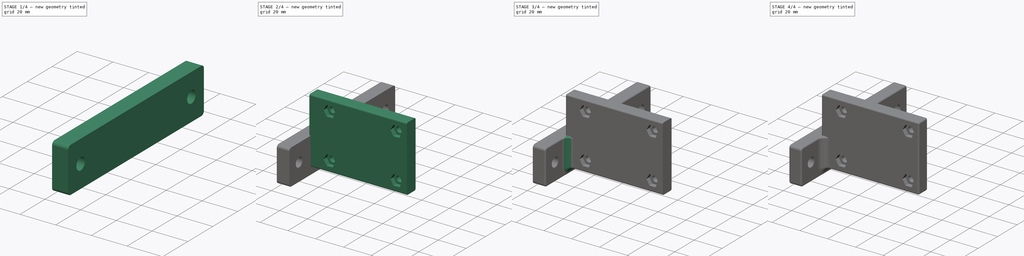
[diagram: build sequence overview — one tinted view per stage of 4, left to right]
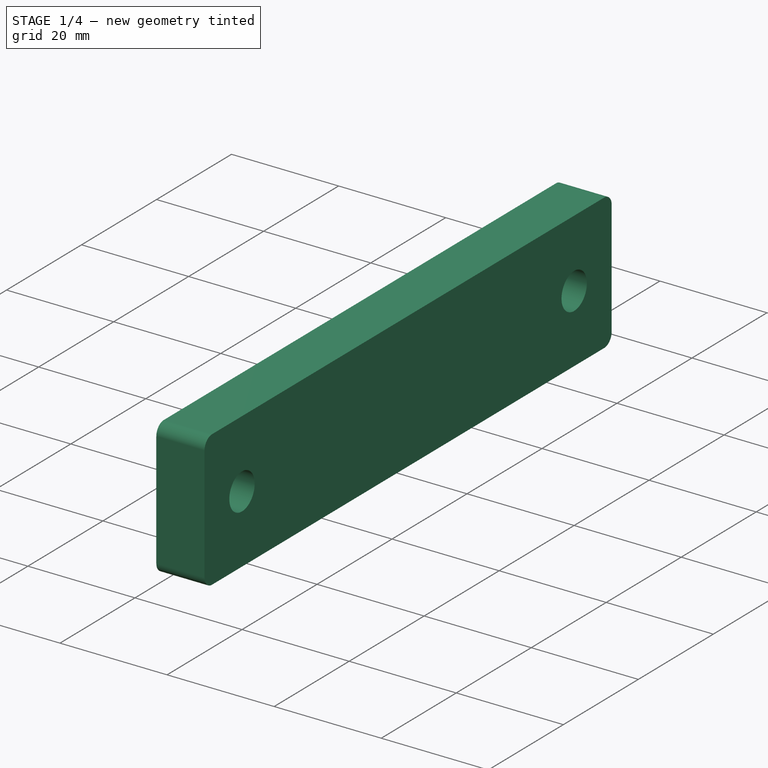
[diagram: stage 1 of 4 — iso view after this stage's code; geometry added in this stage tinted green]
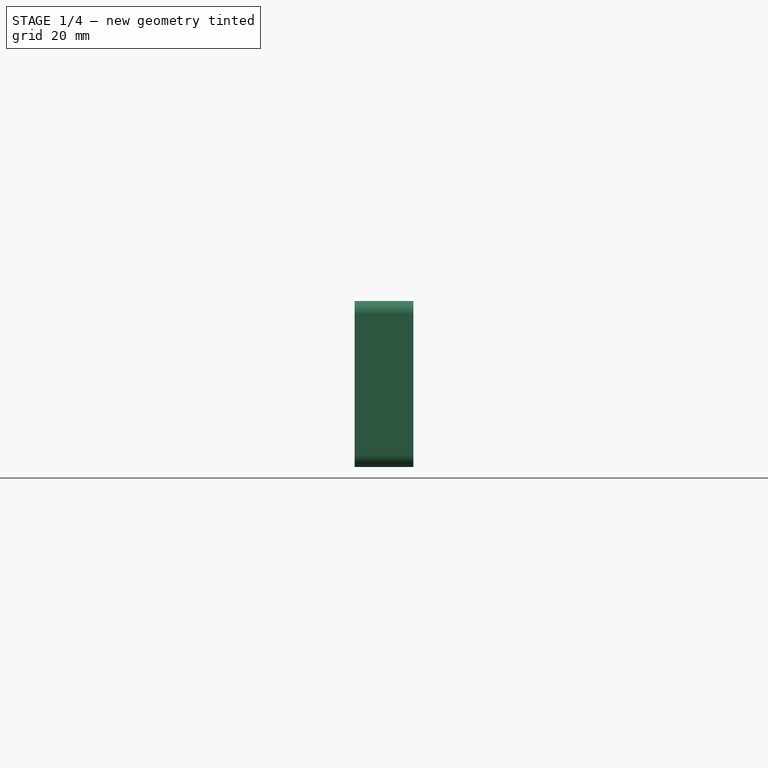
[diagram: stage 1 of 4 — front view after this stage's code; geometry added in this stage tinted green]
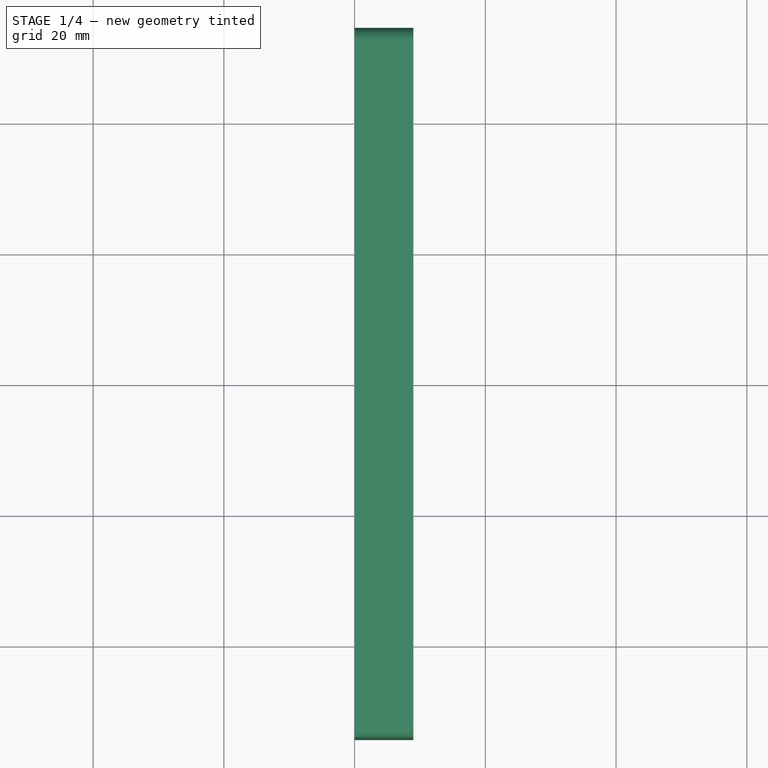
[diagram: stage 1 of 4 — top view after this stage's code; geometry added in this stage tinted green]
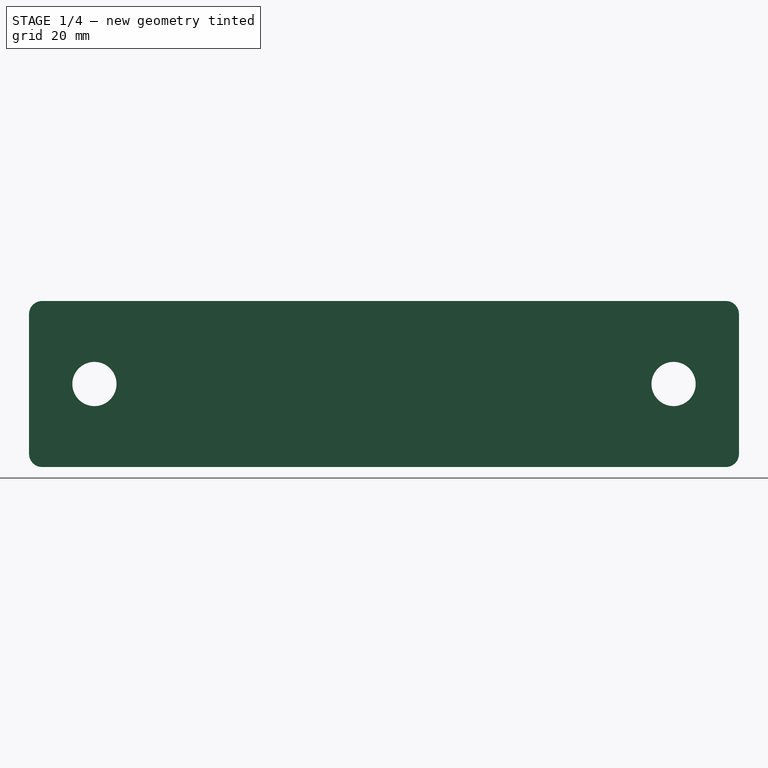
[diagram: stage 1 of 4 — right view after this stage's code; geometry added in this stage tinted green]
FCSTD DOCUMENT  (FreeCAD 0.20R29603 (Git))
Label: tmaze_door_bracket
License: All rights reserved
LicenseURL: http://en.wikipedia.org/wiki/All_rights_reserved
objects: Sketcher::SketchObject×5, PartDesign::Fillet×5, PartDesign::Plane×3, PartDesign::Pocket×3, PartDesign::Pad×2, Spreadsheet::Sheet×1, PartDesign::Body×1
note: 29 computed .brp shape members not serialized (recipe doc carries the construction recipe); baked Part::Feature solids carry a one-line shape summary decoded from their .brp

FEATURE [Spreadsheet::Sheet] Spreadsheet
  cells = A2=External Part Parameters; A3=ServoLength; B3(ServoLength)==54.3mm; A4=ServoHoleSpacing; B4(ServoHoleSpacing)==48mm; A5=ServoBracketHoleSpacing; B5(ServoBracketHoleSpacing)==32mm; A6=ServoBracketBaseLength; B6(ServoBracketBaseLength)==39mm; A7=ServoBracketBaseWidth; B7(ServoBracketBaseWidth)==7mm; A8=ServoBracketAssemblyLength; B8(ServoBracketAssemblyLength)==55mm; A9=ServoBracketMountHoleDiam; B9(ServoBracketMountHoleDiam)==4.3mm; C9=M4; A10=ServoBracketMountNutWidth; B10(ServoBracketMountNutWidth)==7mm; C10=M4 ; A11=ServoBracketMountNutThickness; B11(ServoBracketMountNutThickness)==3.2mm; A12=Height1020Beam; B12(Height1020Beam)==1in; A13=Qtr20ThruHoleDiam; B13(Qtr20ThruHoleDiam)==0.266in; A14=Qtr20MaxDiamHead; B14(Qtr20MaxDiamHead)==14mm; A15=FloorThickness; B15(FloorThickness)==0.125in; A17=Design Parameters; A18=MountPlateThickness; B18(MountPlateThickness)==9mm; A19=MountPlateLength; B19(MountPlateLength)==2 * ServoLength; A20=MountPlateHeight; B20(MountPlateHeight)==1in; A21=MountPlateCornerFilletRadius; B21(MountPlateCornerFilletRadius)==2mm; A22=Qtr20SlotHeight; B22(Qtr20SlotHeight)==1.001 * Qtr20ThruHoleDiam; A23=Qtr20SlotDistFromEnd; B23(Qtr20SlotDistFromEnd)==0.5 * Qtr20MaxDiamHead + 3mm; A24=ServoPlateFilletRadius; B24(ServoPlateFilletRadius)==3mm; A25=ServoPlateDistFromSlot; B25(ServoPlateDistFromSlot)==0.5 * Qtr20MaxDiamHead + ServoPlateFilletRadius + 2mm; A26=ServoMarginToMountPlate; B26(ServoMarginToMountPlate)==10mm; A27=ServoBracketMargin; B27(ServoBracketMargin)==4mm; A28=ServoPlateThickness; B28(ServoPlateThickness)==9mm; A29=ServoPlateLength; B29(ServoPlateLength)==ServoBracketAssemblyLength + ServoMarginToMountPlate + ServoBracketMargin; A30=ServoPlateHeight; B30(ServoPlateHeight)==ServoBracketBaseLength + 2 * ServoBracketMargin; A31=ServoPlateCornerFilletRadius; B31(ServoPlateCornerFilletRadius)==1mm; A32=ServoPlateFrontDatumPlateOffset; B32(ServoPlateFrontDatumPlateOffset)==0.5 * MountPlateLength - Qtr20SlotDistFromEnd - ServoPlateDistFromSlot - ServoPlateThickness; A33=ServoPlateBackDatumPlateOffset; B33(ServoPlateBackDatumPlateOffset)==0.5 * MountPlateLength - Qtr20SlotDistFromEnd - ServoPlateDistFromSlot; A34=ServoBracketMountNutMargin; B34(ServoBracketMountNutMargin)==0.2mm; A35=ServoBracketMountNutPocketWidth; B35(ServoBracketMountNutPocketWidth)==ServoBracketMountNutWidth + 2 * ServoBracketMountNutMargin; A36=ServoBracketMountNutPocketDepth; B36(ServoBracketMountNutPocketDepth)==ServoBracketMountNutThickness; A37=ServoPlateToMountPlateFilletRadius; B37(ServoPlateToMountPlateFilletRadius)==5mm; A38=StadardEdgeFillets; B38(StadardEdgeFillets)==1mm
FEATURE [Sketcher::SketchObject] Sketch  label="MountPlateSketch"
  FullyConstrained = true
  MapMode = 5
  Placement = pos=(0,0,0) rot=(0.57735,0.57735,0.57735;2.0944rad)
  Support = -> [YZ_Plane]
  expr: Constraints[20] = Spreadsheet.MountPlateCornerFilletRadius
  expr: Constraints[21] = Spreadsheet.MountPlateLength
  expr: Constraints[22] = Spreadsheet.MountPlateHeight
  sketch-geometry (10):
    g0: ArcOfCircle CenterX=-52.3 CenterY=-2 CenterZ=0 NormalX=0 NormalY=0 NormalZ=1 AngleXU=0 Radius=2 StartAngle=1.5708 EndAngle=3.14159
    g1: LineSegment StartX=-52.3 StartY=0 StartZ=0 EndX=52.3 EndY=0 EndZ=0
    g2: ArcOfCircle CenterX=52.3 CenterY=-2 CenterZ=0 NormalX=0 NormalY=0 NormalZ=1 AngleXU=0 Radius=2 StartAngle=2e-16 EndAngle=1.5708
    g3: LineSegment StartX=54.3 StartY=-2 StartZ=0 EndX=54.3 EndY=-23.4 EndZ=0
    g4: ArcOfCircle CenterX=52.3 CenterY=-23.4 CenterZ=0 NormalX=0 NormalY=0 NormalZ=1 AngleXU=0 Radius=2 StartAngle=4.71239 EndAngle=6.28319
    g5: LineSegment StartX=52.3 StartY=-25.4 StartZ=0 EndX=-52.3 EndY=-25.4 EndZ=0
    g6: ArcOfCircle CenterX=-52.3 CenterY=-23.4 CenterZ=0 NormalX=0 NormalY=0 NormalZ=1 AngleXU=0 Radius=2 StartAngle=3.14159 EndAngle=4.71239
    g7: LineSegment StartX=-54.3 StartY=-23.4 StartZ=0 EndX=-54.3 EndY=-2 EndZ=0
    g8: GeomPoint X=-54.3 Y=0 Z=0
    g9: GeomPoint X=54.3 Y=-25.4 Z=0
  constraints (23):
    c: Tangent(g0,g1) = 1.5708
    c: Tangent(g1,g2) = 1.5708
    c: Tangent(g2,g3) = 1.5708
    c: Tangent(g3,g4) = 1.5708
    c: Tangent(g4,g5) = 1.5708
    c: Tangent(g5,g6) = 1.5708
    c: Tangent(g6,g7) = 1.5708
    c: Tangent(g7,g0) = 1.5708
    c: Horizontal(g1)
    c: Horizontal(g5)
    c: Vertical(g3)
    c: Vertical(g7)
    c: Equal(g0,g2)
    c: Equal(g2,g4)
    c: Equal(g4,g6)
    c: PointOnObject(g8,g1)
    c: PointOnObject(g8,g7)
    c: PointOnObject(g9,g3)
    c: PointOnObject(g9,g5)
    c: Symmetric(g0,g1,g-1)
    c: Radius(g4) = 2
    c: DistanceX(g0,g2) = 108.6
    c: DistanceY(g5,g0) = 25.4
FEATURE [PartDesign::Pad] Pad  label="MountPlatePad"
  Direction = (1,-2e-16,3e-16)
  Length = 9
  Length2 = 10
  Placement = pos=(0,0,0) rot=(0.57735,0.57735,0.57735;2.0944rad)
  Profile = -> Sketch
  ReferenceAxis = -> Sketch [N_Axis]
  Type = 0
  expr: Length = Spreadsheet.MountPlateThickness
FEATURE [PartDesign::Plane] DatumPlane  label="MountPlateFrontDatumPlane"
  AttachmentOffset = pos=(0,0,9) rot=(0,0,1;0rad)
  Length = 123.64
  MapMode = 5
  Placement = pos=(9,-2e-15,2e-15) rot=(0.57735,0.57735,0.57735;2.0944rad)
  ResizeMode = 0
  Support = -> [YZ_Plane]
  Width = 67.1154
  expr: .AttachmentOffset.Base.z = Spreadsheet.MountPlateThickness
FEATURE [Sketcher::SketchObject] Sketch001  label="Qtr20SlotSketch"
  FullyConstrained = true
  MapMode = 5
  Placement = pos=(9,-2e-15,2e-15) rot=(0.57735,0.57735,0.57735;2.0944rad)
  Support = -> [DatumPlane]
  expr: Constraints[14] = Spreadsheet.MountPlateLength
  expr: Constraints[15] = Spreadsheet.MountPlateHeight
  expr: Constraints[17] = Spreadsheet.Qtr20SlotDistFromEnd
  expr: Constraints[27] = Spreadsheet.Qtr20ThruHoleDiam
  expr: Constraints[2] = Spreadsheet.MountPlateHeight * 0.5
  expr: Constraints[40] = Spreadsheet.Qtr20SlotHeight
  expr: Constraints[63] = Spreadsheet.Qtr20SlotHeight
  sketch-geometry (23):
    g0: LineSegment StartX=0 StartY=0 StartZ=0 EndX=0 EndY=-12.7 EndZ=0
    g1: LineSegment StartX=-44.3 StartY=-12.7 StartZ=0 EndX=44.3 EndY=-12.7 EndZ=0
    g2: LineSegment StartX=-54.3 StartY=-1e-16 StartZ=0 EndX=54.3 EndY=-1e-16 EndZ=0
    g3: LineSegment StartX=54.3 StartY=-1e-16 StartZ=0 EndX=54.3 EndY=-25.4 EndZ=0
    g4: LineSegment StartX=54.3 StartY=-25.4 StartZ=0 EndX=-54.3 EndY=-25.4 EndZ=0
    g5: LineSegment StartX=-54.3 StartY=-25.4 StartZ=0 EndX=-54.3 EndY=0 EndZ=0
    g6: GeomPoint X=-54.3 Y=-12.7 Z=0
    g7: LineSegment StartX=-47.6782 StartY=-12.6966 StartZ=0 EndX=-40.9218 EndY=-12.6966 EndZ=0
    g8: LineSegment StartX=-40.9218 StartY=-12.6966 StartZ=0 EndX=-40.9218 EndY=-12.7034 EndZ=0
    g9: LineSegment StartX=-40.9218 StartY=-12.7034 StartZ=0 EndX=-47.6782 EndY=-12.7034 EndZ=0
    g10: LineSegment StartX=-47.6782 StartY=-12.7034 StartZ=0 EndX=-47.6782 EndY=-12.6966 EndZ=0
    g11: ArcOfCircle CenterX=-44.3 CenterY=-12.6966 CenterZ=0 NormalX=0 NormalY=0 NormalZ=1 AngleXU=0 Radius=3.3782 StartAngle=1e-15 EndAngle=3.14159
    g12: ArcOfCircle CenterX=-44.3 CenterY=-12.7034 CenterZ=0 NormalX=0 NormalY=0 NormalZ=1 AngleXU=0 Radius=3.3782 StartAngle=3.14159 EndAngle=6.28319
    g13: LineSegment StartX=-44.3 StartY=-12.6966 StartZ=0 EndX=-44.3 EndY=-9.31842 EndZ=0
    g14: LineSegment StartX=-44.3 StartY=-12.7034 StartZ=0 EndX=-44.3 EndY=-16.0816 EndZ=0
    g15: LineSegment StartX=40.9218 StartY=-12.6966 StartZ=0 EndX=47.6782 EndY=-12.6966 EndZ=0
    g16: LineSegment StartX=47.6782 StartY=-12.6966 StartZ=0 EndX=47.6782 EndY=-12.7034 EndZ=0
    g17: LineSegment StartX=47.6782 StartY=-12.7034 StartZ=0 EndX=40.9218 EndY=-12.7034 EndZ=0
    g18: LineSegment StartX=40.9218 StartY=-12.7034 StartZ=0 EndX=40.9218 EndY=-12.6966 EndZ=0
    g19: ArcOfCircle CenterX=44.3 CenterY=-12.6966 CenterZ=0 NormalX=0 NormalY=0 NormalZ=1 AngleXU=0 Radius=3.3782 StartAngle=-3.6e-15 EndAngle=3.14159
    g20: ArcOfCircle CenterX=44.3 CenterY=-12.7034 CenterZ=0 NormalX=0 NormalY=0 NormalZ=1 AngleXU=0 Radius=3.3782 StartAngle=3.14159 EndAngle=6.28319
    g21: LineSegment StartX=44.3 StartY=-12.6966 StartZ=0 EndX=44.3 EndY=-9.31842 EndZ=0
    g22: LineSegment StartX=44.3 StartY=-12.7034 StartZ=0 EndX=44.3 EndY=-16.0816 EndZ=0
  constraints (64):
    c: Vertical(g0)
    c: Coincident(g0,g-1)
    c: DistanceY(g0,g0) = 12.7
    c: Symmetric(g1,g1,g0)
    c: Horizontal(g1)
    c: Coincident(g2,g3)
    c: Coincident(g3,g4)
    c: Coincident(g4,g5)
    c: Coincident(g5,g2)
    c: Horizontal(g2)
    c: Horizontal(g4)
    c: Vertical(g3)
    c: Vertical(g5)
    c: Symmetric(g2,g3,g0)
    c: DistanceX(g2,g2) = 108.6
    c: DistanceY(g3,g3) = 25.4
    c: Symmetric(g4,g2,g6)
    c: DistanceX(g6,g1) = 10
    c: Coincident(g7,g8)
    c: Coincident(g8,g9)
    c: Coincident(g9,g10)
    c: Coincident(g10,g7)
    c: Horizontal(g7)
    c: Horizontal(g9)
    c: Vertical(g8)
    c: Vertical(g10)
    c: Symmetric(g7,g8,g1)
    c: DistanceX(g9,g9) = 6.7564
    c: PointOnObject(g11,g7)
    c: Coincident(g11,g10)
    c: Coincident(g11,g8)
    c: PointOnObject(g12,g9)
    c: Coincident(g12,g10)
    c: Coincident(g12,g8)
    c: Coincident(g13,g11)
    c: PointOnObject(g13,g11)
    c: Vertical(g13)
    c: Coincident(g14,g12)
    c: PointOnObject(g14,g12)
    c: Vertical(g14)
    c: DistanceY(g14,g13) = 6.76316
    c: Coincident(g15,g16)
    c: Coincident(g16,g17)
    c: Coincident(g17,g18)
    c: Coincident(g18,g15)
    c: Horizontal(g15)
    c: Horizontal(g17)
    c: Vertical(g16)
    c: Vertical(g18)
    c: Symmetric(g15,g16,g1)
    c: Equal(g17,g9)
    c: PointOnObject(g19,g15)
    c: Coincident(g19,g18)
    c: Coincident(g19,g16)
    c: PointOnObject(g20,g17)
    c: Coincident(g20,g18)
    c: Coincident(g20,g16)
    c: Coincident(g21,g19)
    c: PointOnObject(g21,g19)
    c: Vertical(g21)
    c: Coincident(g22,g20)
    c: PointOnObject(g22,g20)
    c: Vertical(g22)
    c: DistanceY(g22,g21) = 6.76316
FEATURE [PartDesign::Pocket] Pocket  label="Qtr20SlotPadPocket"
  BaseFeature = -> Pad
  Direction = (-1,1e-16,-1e-16)
  Length = 5
  Length2 = 5
  Placement = pos=(0,0,0) rot=(0.57735,0.57735,0.57735;2.0944rad)
  Profile = -> Sketch001
  ReferenceAxis = -> Sketch001 [N_Axis]
  Type = 1
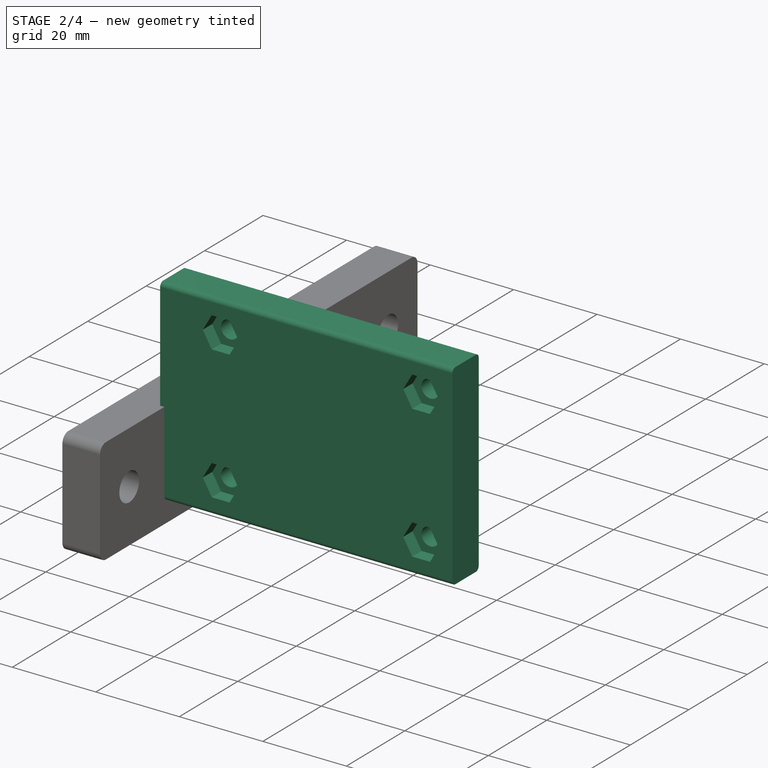
[diagram: stage 2 of 4 — iso view after this stage's code; geometry added in this stage tinted green]
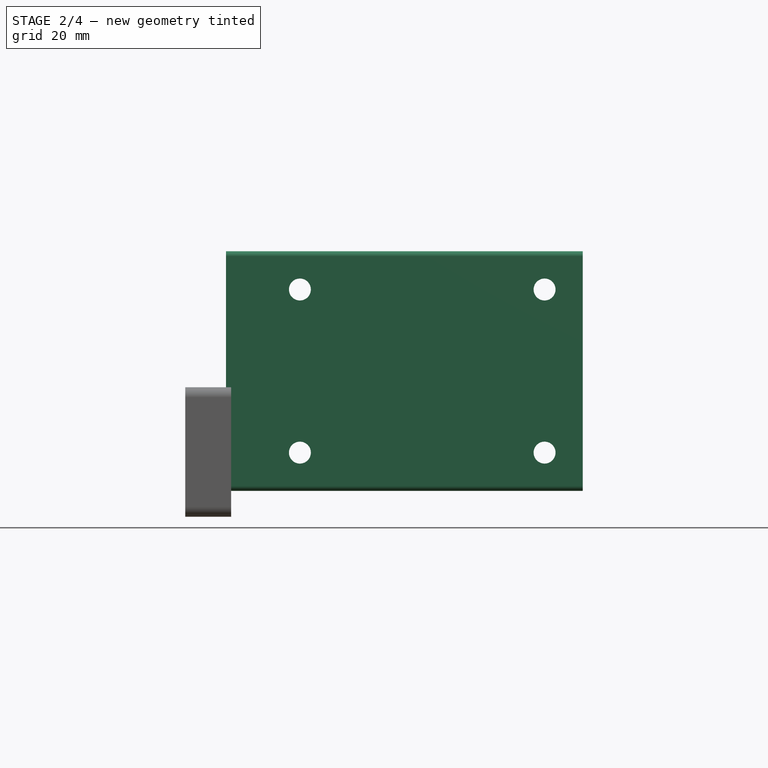
[diagram: stage 2 of 4 — front view after this stage's code; geometry added in this stage tinted green]
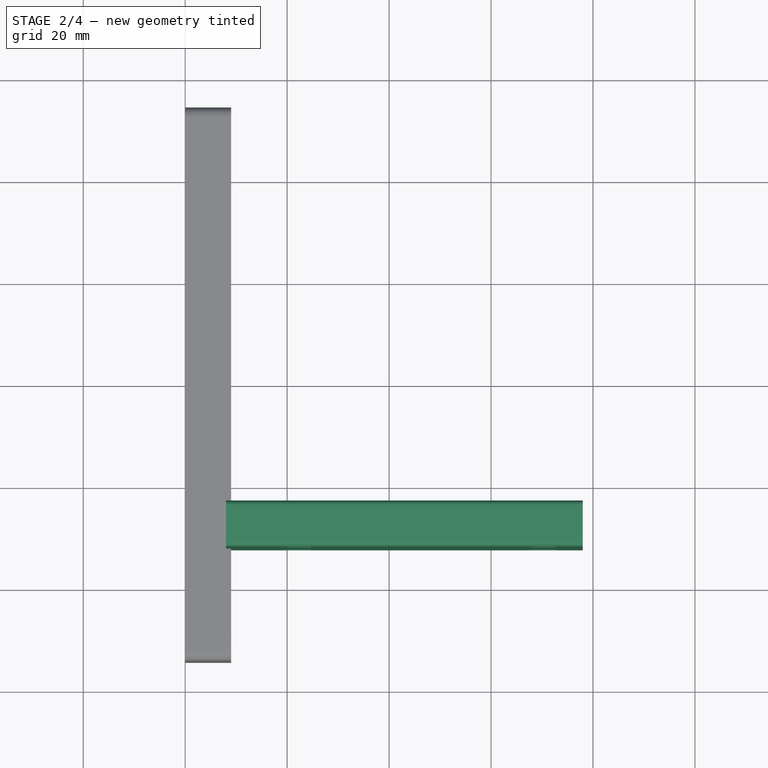
[diagram: stage 2 of 4 — top view after this stage's code; geometry added in this stage tinted green]
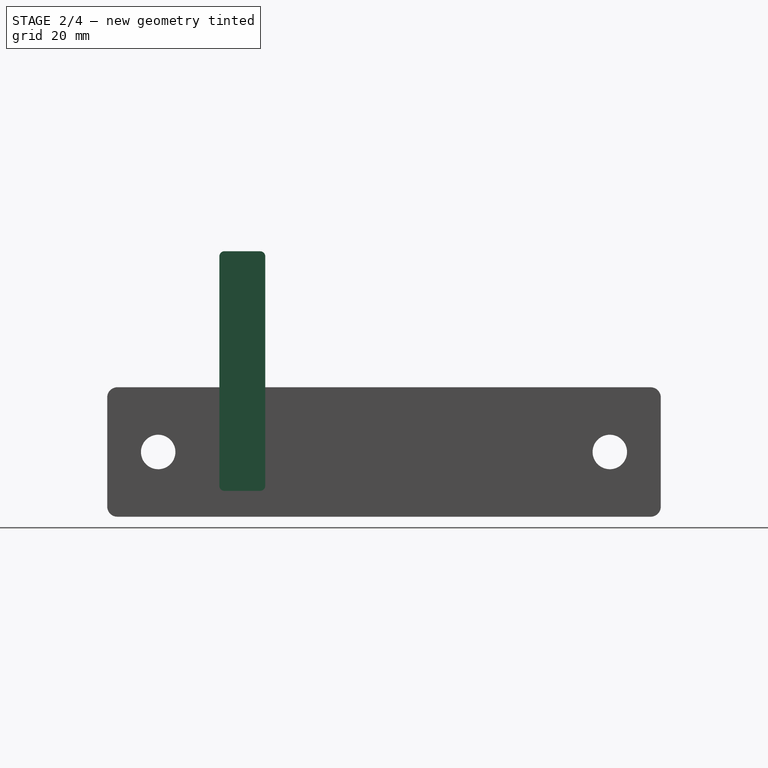
[diagram: stage 2 of 4 — right view after this stage's code; geometry added in this stage tinted green]
FEATURE [Sketcher::SketchObject] Sketch002  label="ServoPlateSketch"
  FullyConstrained = true
  MapMode = 5
  Placement = pos=(9,-2e-15,2e-15) rot=(0.57735,0.57735,0.57735;2.0944rad)
  Support = -> [DatumPlane]
  expr: Constraints[14] = Spreadsheet.MountPlateLength
  expr: Constraints[15] = Spreadsheet.MountPlateHeight
  expr: Constraints[17] = Spreadsheet.Qtr20SlotDistFromEnd
  expr: Constraints[19] = Spreadsheet.ServoPlateDistFromSlot
  expr: Constraints[2] = Spreadsheet.MountPlateHeight * 0.5
  expr: Constraints[34] = Spreadsheet.FloorThickness
  expr: Constraints[37] = Spreadsheet.ServoPlateThickness
  expr: Constraints[38] = Spreadsheet.ServoPlateHeight
  expr: Constraints[43] = Spreadsheet.ServoPlateCornerFilletRadius
  sketch-geometry (25):
    g0: LineSegment StartX=0 StartY=0 StartZ=0 EndX=0 EndY=-12.7 EndZ=0
    g1: LineSegment StartX=0 StartY=-12.7 StartZ=0 EndX=-44.3 EndY=-12.7 EndZ=0
    g2: LineSegment StartX=-54.3 StartY=5e-16 StartZ=0 EndX=54.3 EndY=5e-16 EndZ=0
    g3: LineSegment StartX=54.3 StartY=5e-16 StartZ=0 EndX=54.3 EndY=-25.4 EndZ=0
    g4: LineSegment StartX=54.3 StartY=-25.4 StartZ=0 EndX=-54.3 EndY=-25.4 EndZ=0
    g5: LineSegment StartX=-54.3 StartY=-25.4 StartZ=0 EndX=-54.3 EndY=0 EndZ=0
    g6: GeomPoint X=-54.3 Y=-12.7 Z=0
    g7: GeomPoint X=-32.3 Y=-12.7 Z=0
    g8: LineSegment StartX=-31.3 StartY=26.675 StartZ=0 EndX=-24.3 EndY=26.675 EndZ=0
    g9: LineSegment StartX=-23.3 StartY=25.675 StartZ=0 EndX=-23.3 EndY=-19.325 EndZ=0
    g10: LineSegment StartX=-24.3 StartY=-20.325 StartZ=0 EndX=-31.3 EndY=-20.325 EndZ=0
    g11: LineSegment StartX=-32.3 StartY=-19.325 StartZ=0 EndX=-32.3 EndY=25.675 EndZ=0
    g12: LineSegment StartX=-32.3 StartY=-20.325 StartZ=0 EndX=-32.3 EndY=-12.7 EndZ=0
    g13: LineSegment StartX=-54.3 StartY=5e-16 StartZ=0 EndX=-54.3 EndY=3.175 EndZ=0
    g14: LineSegment StartX=54.3 StartY=5e-16 StartZ=0 EndX=54.3 EndY=3.175 EndZ=0
    g15: LineSegment StartX=-54.3 StartY=3.175 StartZ=0 EndX=54.3 EndY=3.175 EndZ=0
    g16: GeomPoint X=-32.3 Y=3.175 Z=0
    g17: ArcOfCircle CenterX=-24.3 CenterY=25.675 CenterZ=0 NormalX=0 NormalY=0 NormalZ=1 AngleXU=0 Radius=1 StartAngle=6e-16 EndAngle=1.5708
    g18: GeomPoint X=-23.3 Y=26.675 Z=0
    g19: ArcOfCircle CenterX=-31.3 CenterY=25.675 CenterZ=0 NormalX=0 NormalY=0 NormalZ=1 AngleXU=0 Radius=1 StartAngle=1.5708 EndAngle=3.14159
    g20: GeomPoint X=-32.3 Y=26.675 Z=0
    g21: ArcOfCircle CenterX=-24.3 CenterY=-19.325 CenterZ=0 NormalX=0 NormalY=0 NormalZ=1 AngleXU=0 Radius=1 StartAngle=4.71239 EndAngle=6.28319
    g22: GeomPoint X=-23.3 Y=-20.325 Z=0
    g23: ArcOfCircle CenterX=-31.3 CenterY=-19.325 CenterZ=0 NormalX=0 NormalY=0 NormalZ=1 AngleXU=0 Radius=1 StartAngle=3.14159 EndAngle=4.71239
    g24: GeomPoint X=-32.3 Y=-20.325 Z=0
  constraints (59):
    c: Coincident(g0,g-1)
    c: Vertical(g0)
    c: DistanceY(g0,g0) = 12.7
    c: Coincident(g1,g0)
    c: Horizontal(g1)
    c: Coincident(g2,g3)
    c: Coincident(g3,g4)
    c: Coincident(g4,g5)
    c: Coincident(g5,g2)
    c: Horizontal(g2)
    c: Horizontal(g4)
    c: Vertical(g3)
    c: Vertical(g5)
    c: Symmetric(g2,g3,g0)
    c: DistanceX(g2,g2) = 108.6
    c: DistanceY(g3,g3) = 25.4
    c: Symmetric(g2,g4,g6)
    c: DistanceX(g6,g1) = 10
    c: PointOnObject(g7,g1)
    c: DistanceX(g1,g7) = 12
    c: Horizontal(g8)
    c: Horizontal(g10)
    c: Vertical(g9)
    c: Vertical(g11)
    c: Coincident(g12,g24)
    c: Coincident(g12,g7)
    c: Vertical(g12)
    c: Coincident(g13,g2)
    c: Vertical(g13)
    c: Coincident(g14,g2)
    c: Vertical(g14)
    c: Equal(g13,g14)
    c: Coincident(g15,g13)
    c: Coincident(g15,g14)
    c: DistanceY(g13,g13) = 3.175
    c: PointOnObject(g16,g15)
    c: Symmetric(g20,g24,g16)
    c: DistanceX(g20,g18) = 9
    c: DistanceY(g24,g20) = 47
    c: PointOnObject(g18,g8)
    c: PointOnObject(g18,g9)
    c: Tangent(g8,g17) = 1.5708
    c: Tangent(g9,g17) = 1.5708
    c: Radius(g17) = 1
    c: PointOnObject(g20,g11)
    c: PointOnObject(g20,g8)
    c: Tangent(g11,g19) = 1.5708
    c: Tangent(g8,g19) = 1.5708
    c: Equal(g19,g17)
    c: PointOnObject(g22,g10)
    c: PointOnObject(g22,g9)
    c: Tangent(g10,g21) = 1.5708
    c: Tangent(g9,g21) = 1.5708
    c: Equal(g21,g17)
    c: PointOnObject(g24,g11)
    c: PointOnObject(g24,g10)
    c: Tangent(g11,g23) = 1.5708
    c: Tangent(g10,g23) = 1.5708
    c: Equal(g23,g19)
FEATURE [PartDesign::Pad] Pad001  label="ServoPlatePad"
  BaseFeature = -> Pocket
  Direction = (1,-1e-16,1e-16)
  Length = 69
  Length2 = 1
  Placement = pos=(0,0,0) rot=(0.57735,0.57735,0.57735;2.0944rad)
  Profile = -> Sketch002
  ReferenceAxis = -> Sketch002 [N_Axis]
  Type = 4
  expr: Length = Spreadsheet.ServoPlateLength
FEATURE [PartDesign::Plane] DatumPlane001  label="ServoPlateFrontDatumPlane"
  AttachmentOffset = pos=(0,0,23.3) rot=(0,0,1;0rad)
  Length = 117.647
  MapMode = 5
  Placement = pos=(0,-23.3,-5.2e-15) rot=(1,0,0;1.5708rad)
  ResizeMode = 0
  Support = -> [XZ_Plane]
  Width = 66.7225
  expr: .AttachmentOffset.Base.z = Spreadsheet.ServoPlateFrontDatumPlateOffset
FEATURE [PartDesign::Plane] DatumPlane002  label="ServoPlateBackDatumPlane"
  AttachmentOffset = pos=(0,0,32.3) rot=(0,0,1;0rad)
  Length = 117.647
  MapMode = 5
  Placement = pos=(0,-32.3,-7.2e-15) rot=(1,0,0;1.5708rad)
  ResizeMode = 0
  Support = -> [XZ_Plane]
  Width = 66.7225
  expr: .AttachmentOffset.Base.z = Spreadsheet.ServoPlateBackDatumPlateOffset
FEATURE [Sketcher::SketchObject] Sketch003  label="ServoBracketMountHoleSketch"
  FullyConstrained = true
  MapMode = 5
  Placement = pos=(0,-23.3,-5.2e-15) rot=(0,0.707107,0.707107;3.14159rad)
  Support = -> [DatumPlane001]
  expr: Constraints[18] = Spreadsheet.ServoBracketBaseLength
  expr: Constraints[19] = Spreadsheet.ServoBracketAssemblyLength
  expr: Constraints[2] = Spreadsheet.FloorThickness
  expr: Constraints[30] = Spreadsheet.ServoBracketHoleSpacing
  expr: Constraints[31] = Spreadsheet.ServoHoleSpacing
  expr: Constraints[39] = Spreadsheet.ServoBracketMountHoleDiam
  expr: Constraints[5] = Spreadsheet.MountPlateThickness
  expr: Constraints[8] = Spreadsheet.ServoMarginToMountPlate
  sketch-geometry (16):
    g0: LineSegment StartX=0 StartY=0 StartZ=0 EndX=0 EndY=3.175 EndZ=0
    g1: LineSegment StartX=-9 StartY=3.175 StartZ=0 EndX=0 EndY=3.175 EndZ=0
    g2: LineSegment StartX=-19 StartY=3.175 StartZ=0 EndX=-9 EndY=3.175 EndZ=0
    g3: LineSegment StartX=-74 StartY=22.675 StartZ=0 EndX=-19 EndY=22.675 EndZ=0
    g4: LineSegment StartX=-19 StartY=22.675 StartZ=0 EndX=-19 EndY=-16.325 EndZ=0
    g5: LineSegment StartX=-19 StartY=-16.325 StartZ=0 EndX=-74 EndY=-16.325 EndZ=0
    g6: LineSegment StartX=-74 StartY=-16.325 StartZ=0 EndX=-74 EndY=22.675 EndZ=0
    g7: GeomPoint X=-46.5 Y=3.175 Z=0
    g8: LineSegment StartX=-70.5 StartY=19.175 StartZ=0 EndX=-22.5 EndY=19.175 EndZ=0
    g9: LineSegment StartX=-22.5 StartY=19.175 StartZ=0 EndX=-22.5 EndY=-12.825 EndZ=0
    g10: LineSegment StartX=-22.5 StartY=-12.825 StartZ=0 EndX=-70.5 EndY=-12.825 EndZ=0
    g11: LineSegment StartX=-70.5 StartY=-12.825 StartZ=0 EndX=-70.5 EndY=19.175 EndZ=0
    g12: Circle CenterX=-70.5 CenterY=19.175 CenterZ=0 NormalX=0 NormalY=0 NormalZ=1 AngleXU=0 Radius=2.15
    g13: Circle CenterX=-22.5 CenterY=19.175 CenterZ=0 NormalX=0 NormalY=0 NormalZ=1 AngleXU=0 Radius=2.15
    g14: Circle CenterX=-70.5 CenterY=-12.825 CenterZ=0 NormalX=0 NormalY=0 NormalZ=1 AngleXU=0 Radius=2.15
    g15: Circle CenterX=-22.5 CenterY=-12.825 CenterZ=0 NormalX=0 NormalY=0 NormalZ=1 AngleXU=0 Radius=2.15
  constraints (40):
    c: Vertical(g0)
    c: Coincident(g-1,g0)
    c: DistanceY(g0,g0) = 3.175
    c: Horizontal(g1)
    c: Coincident(g1,g0)
    c: DistanceX(g1,g1) = 9
    c: Horizontal(g2)
    c: Coincident(g2,g1)
    c: DistanceX(g2,g2) = 10
    c: Coincident(g3,g4)
    c: Coincident(g4,g5)
    c: Coincident(g5,g6)
    c: Coincident(g6,g3)
    c: Horizontal(g3)
    c: Horizontal(g5)
    c: Vertical(g4)
    c: Vertical(g6)
    c: Symmetric(g3,g4,g2)
    c: DistanceY(g6,g6) = 39
    c: DistanceX(g3,g3) = 55
    c: Symmetric(g3,g4,g7)
    c: Coincident(g8,g9)
    c: Coincident(g9,g10)
    c: Coincident(g10,g11)
    c: Coincident(g11,g8)
    c: Horizontal(g8)
    c: Horizontal(g10)
    c: Vertical(g9)
    c: Vertical(g11)
    c: Symmetric(g8,g9,g7)
    c: DistanceY(g11,g11) = 32
    c: DistanceX(g10,g10) = 48
    c: Coincident(g12,g8)
    c: Coincident(g13,g8)
    c: Coincident(g14,g10)
    c: Coincident(g15,g9)
    c: Equal(g12,g14)
    c: Equal(g14,g13)
    c: Equal(g13,g15)
    c: Diameter(g12) = 4.3
FEATURE [PartDesign::Pocket] Pocket001  label="ServoBracketMountHolePocket"
  BaseFeature = -> Pad001
  Direction = (0,-1,-2e-16)
  Length = 5
  Length2 = 5
  Placement = pos=(0,0,0) rot=(0.57735,0.57735,0.57735;2.0944rad)
  Profile = -> Sketch003
  ReferenceAxis = -> Sketch003 [N_Axis]
  Type = 1
FEATURE [Sketcher::SketchObject] Sketch004  label="ServoBracketMountNutSketch"
  FullyConstrained = true
  MapMode = 5
  Placement = pos=(0,-32.3,-7.2e-15) rot=(1,0,0;1.5708rad)
  Support = -> [DatumPlane002]
  expr: Constraints[108] = Spreadsheet.ServoBracketMountNutPocketWidth
  expr: Constraints[18] = Spreadsheet.ServoBracketAssemblyLength
  expr: Constraints[19] = Spreadsheet.ServoBracketBaseLength
  expr: Constraints[2] = Spreadsheet.FloorThickness
  expr: Constraints[30] = Spreadsheet.ServoHoleSpacing
  expr: Constraints[31] = Spreadsheet.ServoBracketHoleSpacing
  expr: Constraints[7] = Spreadsheet.MountPlateThickness
  expr: Constraints[8] = Spreadsheet.ServoMarginToMountPlate
  sketch-geometry (40):
    g0: LineSegment StartX=0 StartY=0 StartZ=0 EndX=0 EndY=3.175 EndZ=0
    g1: LineSegment StartX=0 StartY=3.175 StartZ=0 EndX=9 EndY=3.175 EndZ=0
    g2: LineSegment StartX=9 StartY=3.175 StartZ=0 EndX=19 EndY=3.175 EndZ=0
    g3: LineSegment StartX=19 StartY=22.675 StartZ=0 EndX=74 EndY=22.675 EndZ=0
    g4: LineSegment StartX=74 StartY=22.675 StartZ=0 EndX=74 EndY=-16.325 EndZ=0
    g5: LineSegment StartX=74 StartY=-16.325 StartZ=0 EndX=19 EndY=-16.325 EndZ=0
    g6: LineSegment StartX=19 StartY=-16.325 StartZ=0 EndX=19 EndY=22.675 EndZ=0
    g7: GeomPoint X=46.5 Y=3.175 Z=0
    g8: LineSegment StartX=22.5 StartY=19.175 StartZ=0 EndX=70.5 EndY=19.175 EndZ=0
    g9: LineSegment StartX=70.5 StartY=19.175 StartZ=0 EndX=70.5 EndY=-12.825 EndZ=0
    g10: LineSegment StartX=70.5 StartY=-12.825 StartZ=0 EndX=22.5 EndY=-12.825 EndZ=0
    g11: LineSegment StartX=22.5 StartY=-12.825 StartZ=0 EndX=22.5 EndY=19.175 EndZ=0
    g12: LineSegment StartX=18.2276 StartY=19.175 StartZ=0 EndX=20.3638 EndY=15.475 EndZ=0
    g13: LineSegment StartX=20.3638 StartY=15.475 StartZ=0 EndX=24.6362 EndY=15.475 EndZ=0
    g14: LineSegment StartX=24.6362 StartY=15.475 StartZ=0 EndX=26.7724 EndY=19.175 EndZ=0
    g15: LineSegment StartX=26.7724 StartY=19.175 StartZ=0 EndX=24.6362 EndY=22.875 EndZ=0
    g16: LineSegment StartX=24.6362 StartY=22.875 StartZ=0 EndX=20.3638 EndY=22.875 EndZ=0
    g17: LineSegment StartX=20.3638 StartY=22.875 StartZ=0 EndX=18.2276 EndY=19.175 EndZ=0
    g18: Circle CenterX=22.5 CenterY=19.175 CenterZ=0 NormalX=0 NormalY=0 NormalZ=1 AngleXU=0 Radius=4.27239
    g19: LineSegment StartX=72.6362 StartY=15.475 StartZ=0 EndX=74.7724 EndY=19.175 EndZ=0
    g20: LineSegment StartX=74.7724 StartY=19.175 StartZ=0 EndX=72.6362 EndY=22.875 EndZ=0
    g21: LineSegment StartX=72.6362 StartY=22.875 StartZ=0 EndX=68.3638 EndY=22.875 EndZ=0
    g22: LineSegment StartX=68.3638 StartY=22.875 StartZ=0 EndX=66.2276 EndY=19.175 EndZ=0
    g23: LineSegment StartX=66.2276 StartY=19.175 StartZ=0 EndX=68.3638 EndY=15.475 EndZ=0
    g24: LineSegment StartX=68.3638 StartY=15.475 StartZ=0 EndX=72.6362 EndY=15.475 EndZ=0
    g25: Circle CenterX=70.5 CenterY=19.175 CenterZ=0 NormalX=0 NormalY=0 NormalZ=1 AngleXU=0 Radius=4.27239
    g26: LineSegment StartX=74.7724 StartY=-12.825 StartZ=0 EndX=72.6362 EndY=-9.125 EndZ=0
    g27: LineSegment StartX=72.6362 StartY=-9.125 StartZ=0 EndX=68.3638 EndY=-9.125 EndZ=0
    g28: LineSegment StartX=68.3638 StartY=-9.125 StartZ=0 EndX=66.2276 EndY=-12.825 EndZ=0
    g29: LineSegment StartX=66.2276 StartY=-12.825 StartZ=0 EndX=68.3638 EndY=-16.525 EndZ=0
    g30: LineSegment StartX=68.3638 StartY=-16.525 StartZ=0 EndX=72.6362 EndY=-16.525 EndZ=0
    g31: LineSegment StartX=72.6362 StartY=-16.525 StartZ=0 EndX=74.7724 EndY=-12.825 EndZ=0
    g32: Circle CenterX=70.5 CenterY=-12.825 CenterZ=0 NormalX=0 NormalY=0 NormalZ=1 AngleXU=0 Radius=4.27239
    g33: LineSegment StartX=24.6362 StartY=-16.525 StartZ=0 EndX=26.7724 EndY=-12.825 EndZ=0
    g34: LineSegment StartX=26.7724 StartY=-12.825 StartZ=0 EndX=24.6362 EndY=-9.125 EndZ=0
    g35: LineSegment StartX=24.6362 StartY=-9.125 StartZ=0 EndX=20.3638 EndY=-9.125 EndZ=0
    g36: LineSegment StartX=20.3638 StartY=-9.125 StartZ=0 EndX=18.2276 EndY=-12.825 EndZ=0
    g37: LineSegment StartX=18.2276 StartY=-12.825 StartZ=0 EndX=20.3638 EndY=-16.525 EndZ=0
    g38: LineSegment StartX=20.3638 StartY=-16.525 StartZ=0 EndX=24.6362 EndY=-16.525 EndZ=0
    g39: Circle CenterX=22.5 CenterY=-12.825 CenterZ=0 NormalX=0 NormalY=0 NormalZ=1 AngleXU=0 Radius=4.27239
  constraints (96):
    c: Coincident(g0,g-1)
    c: Vertical(g0)
    c: DistanceY(g0,g0) = 3.175
    c: Coincident(g0,g1)
    c: Horizontal(g1)
    c: Coincident(g1,g2)
    c: Horizontal(g2)
    c: DistanceX(g1,g1) = 9
    c: DistanceX(g2,g2) = 10
    c: Coincident(g3,g4)
    c: Coincident(g4,g5)
    c: Coincident(g5,g6)
    c: Coincident(g6,g3)
    c: Horizontal(g3)
    c: Horizontal(g5)
    c: Vertical(g4)
    c: Vertical(g6)
    c: Symmetric(g3,g5,g2)
    c: DistanceX(g3,g3) = 55
    c: DistanceY(g4,g4) = 39
    c: Symmetric(g3,g4,g7)
    c: Coincident(g8,g9)
    c: Coincident(g9,g10)
    c: Coincident(g10,g11)
    c: Coincident(g11,g8)
    c: Horizontal(g8)
    c: Horizontal(g10)
    c: Vertical(g9)
    c: Vertical(g11)
    c: Symmetric(g8,g9,g7)
    c: DistanceX(g8,g8) = 48
    c: DistanceY(g9,g9) = 32
    c: Coincident(g12,g13)
    c: Coincident(g13,g14)
    c: Coincident(g14,g15)
    c: Coincident(g15,g16)
    c: Coincident(g16,g17)
    c: Coincident(g17,g12)
    c: Equal(g12, g13-g17) x5
    c: PointOnObject(g12,g18)
    c: PointOnObject(g13,g18)
    c: PointOnObject(g14,g18)
    c: PointOnObject(g15,g18)
    c: PointOnObject(g16,g18)
    c: PointOnObject(g17,g18)
    c: Coincident(g18,g8)
    c: Horizontal(g13)
    c: Coincident(g19,g20)
    c: Coincident(g20,g21)
    c: Coincident(g21,g22)
    c: Coincident(g22,g23)
    c: Coincident(g23,g24)
    c: Coincident(g24,g19)
    c: Equal(g19, g20-g24) x5
    c: PointOnObject(g19,g25)
    c: PointOnObject(g20,g25)
    c: PointOnObject(g21,g25)
    c: PointOnObject(g22,g25)
    c: PointOnObject(g23,g25)
    c: PointOnObject(g24,g25)
    c: Coincident(g25,g8)
    c: Horizontal(g21)
    c: Coincident(g26,g27)
    c: Coincident(g27,g28)
    c: Coincident(g28,g29)
    c: Coincident(g29,g30)
    c: Coincident(g30,g31)
    c: Coincident(g31,g26)
    c: Equal(g26, g27-g31) x5
    c: PointOnObject(g26,g32)
    c: PointOnObject(g27,g32)
    c: PointOnObject(g28,g32)
    c: PointOnObject(g29,g32)
    c: PointOnObject(g30,g32)
    c: PointOnObject(g31,g32)
    c: Coincident(g32,g9)
    c: Horizontal(g27)
    c: Coincident(g33,g34)
    c: Coincident(g34,g35)
    c: Coincident(g35,g36)
    c: Coincident(g36,g37)
    c: Coincident(g37,g38)
    c: Coincident(g38,g33)
    c: Equal(g33, g34-g38) x5
    c: PointOnObject(g33,g39)
    c: PointOnObject(g34,g39)
    c: PointOnObject(g35,g39)
    c: PointOnObject(g36,g39)
    c: PointOnObject(g37,g39)
    c: PointOnObject(g38,g39)
    c: Coincident(g39,g10)
    c: Horizontal(g35)
    c: DistanceY(g30,g26) = 7.4
    c: Equal(g27,g24)
    c: Equal(g27,g35)
    c: Equal(g27,g16)
FEATURE [PartDesign::Pocket] Pocket002  label="ServoBracketMountNutPocket"
  BaseFeature = -> Pocket001
  Direction = (0,1,2e-16)
  Length = 3.2
  Length2 = 5
  Placement = pos=(0,0,0) rot=(0.57735,0.57735,0.57735;2.0944rad)
  Profile = -> Sketch004
  ReferenceAxis = -> Sketch004 [N_Axis]
  Type = 0
  expr: Length = Spreadsheet.ServoBracketMountNutPocketDepth
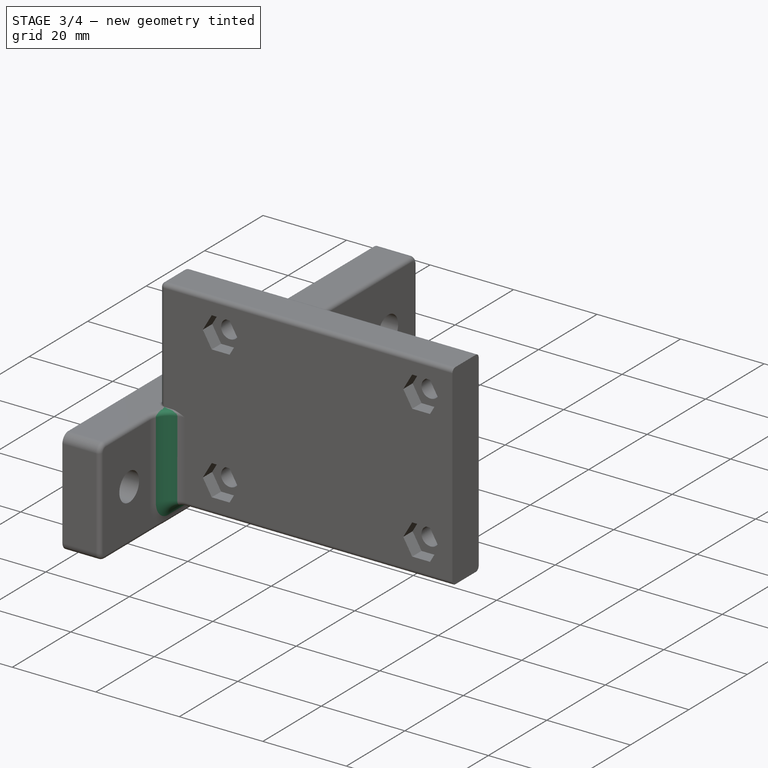
[diagram: stage 3 of 4 — iso view after this stage's code; geometry added in this stage tinted green]
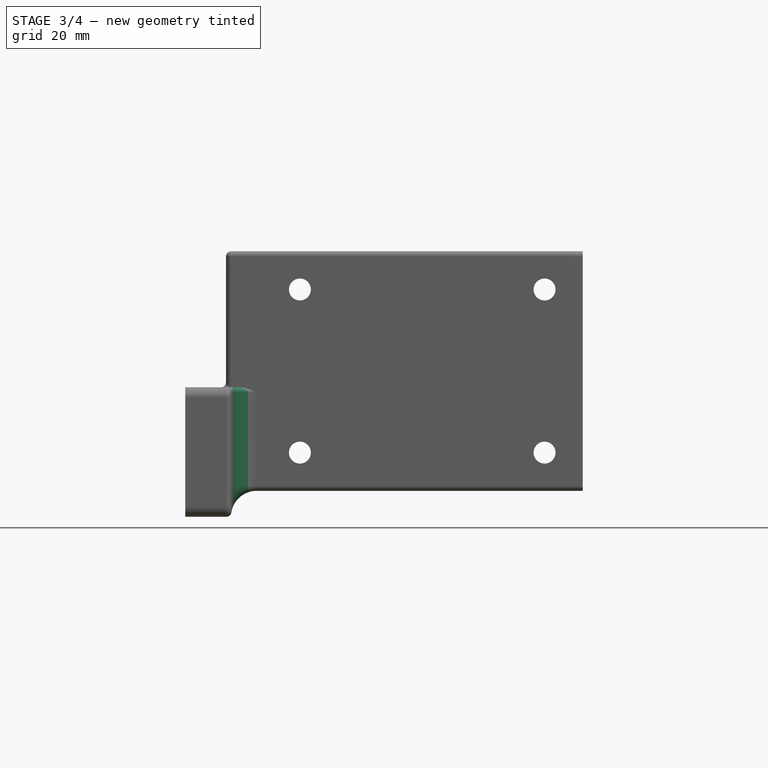
[diagram: stage 3 of 4 — front view after this stage's code; geometry added in this stage tinted green]
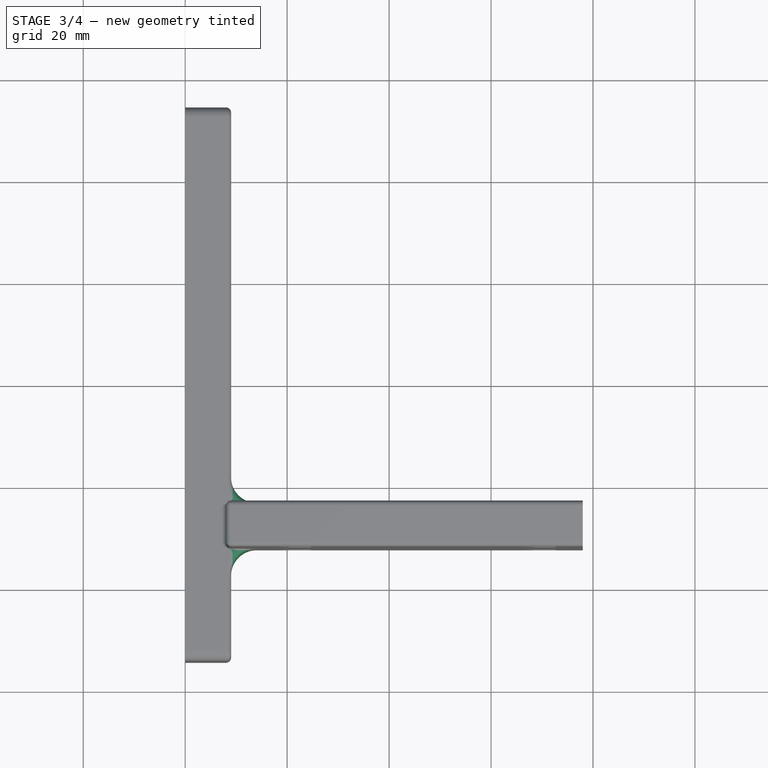
[diagram: stage 3 of 4 — top view after this stage's code; geometry added in this stage tinted green]
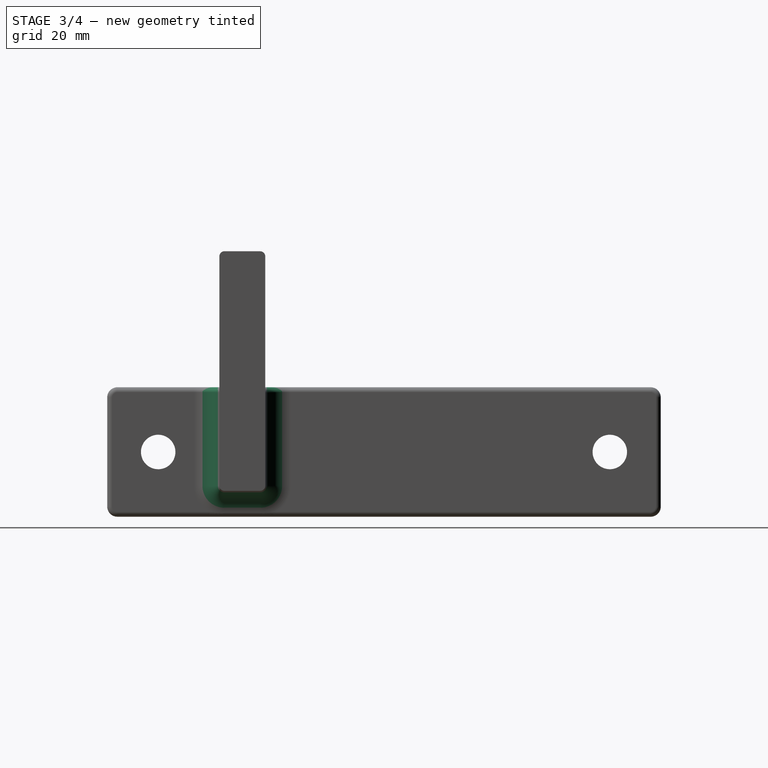
[diagram: stage 3 of 4 — right view after this stage's code; geometry added in this stage tinted green]
FEATURE [PartDesign::Fillet] Fillet  label="ServoPlateToMountPlateSideFillet"
  Base = -> Pocket002 [Edge28]
  BaseFeature = -> Pocket002
  Placement = pos=(0,0,0) rot=(0.57735,0.57735,0.57735;2.0944rad)
  Radius = 5
  SupportTransform = false
  UseAllEdges = false
  expr: Radius = Spreadsheet.ServoPlateToMountPlateFilletRadius
FEATURE [PartDesign::Fillet] Fillet001  label="ServoPlateToMoutPlateTopFillet"
  Base = -> Fillet [Face8]
  BaseFeature = -> Fillet
  Placement = pos=(0,0,0) rot=(0.57735,0.57735,0.57735;2.0944rad)
  Radius = 1
  SupportTransform = false
  UseAllEdges = false
FEATURE [PartDesign::Fillet] Fillet002  label="MountPlateFrontFillet"
  Base = -> Fillet001 [Edge7]
  BaseFeature = -> Fillet001
  Placement = pos=(0,0,0) rot=(0.57735,0.57735,0.57735;2.0944rad)
  Radius = 1
  SupportTransform = false
  UseAllEdges = false
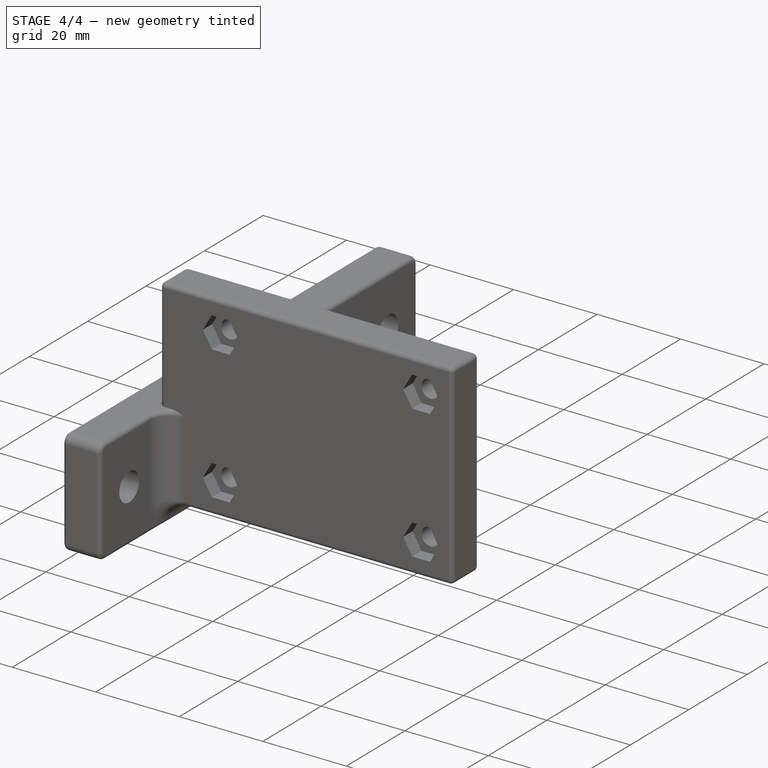
[diagram: stage 4 of 4 — iso view after this stage's code; geometry added in this stage tinted green]
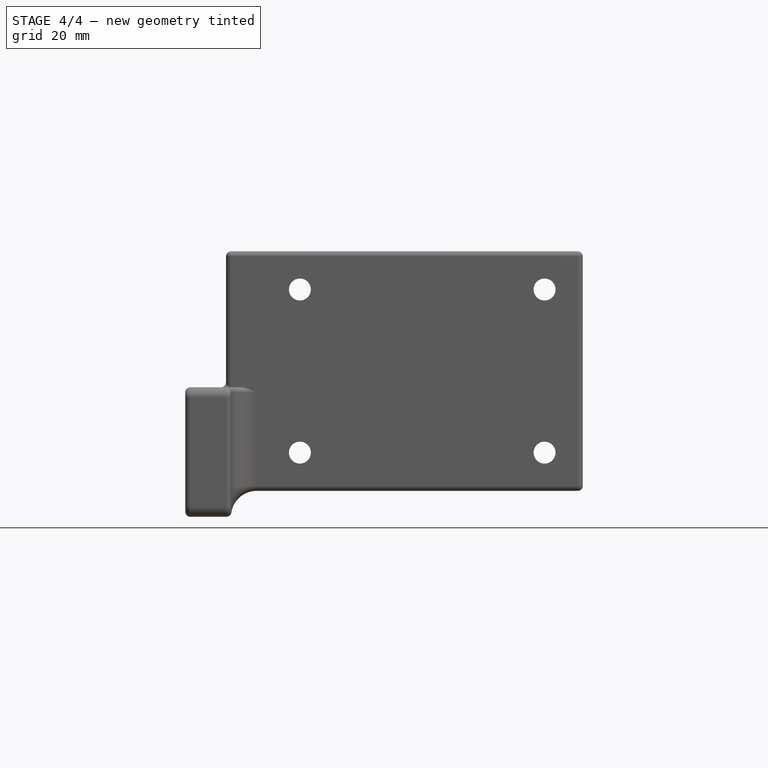
[diagram: stage 4 of 4 — front view after this stage's code; geometry added in this stage tinted green]
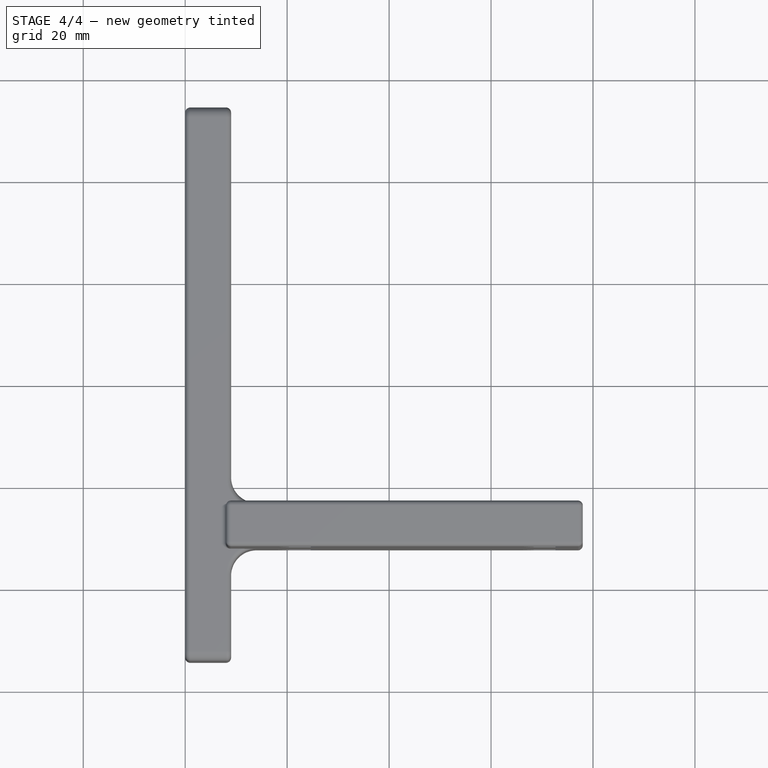
[diagram: stage 4 of 4 — top view after this stage's code; geometry added in this stage tinted green]
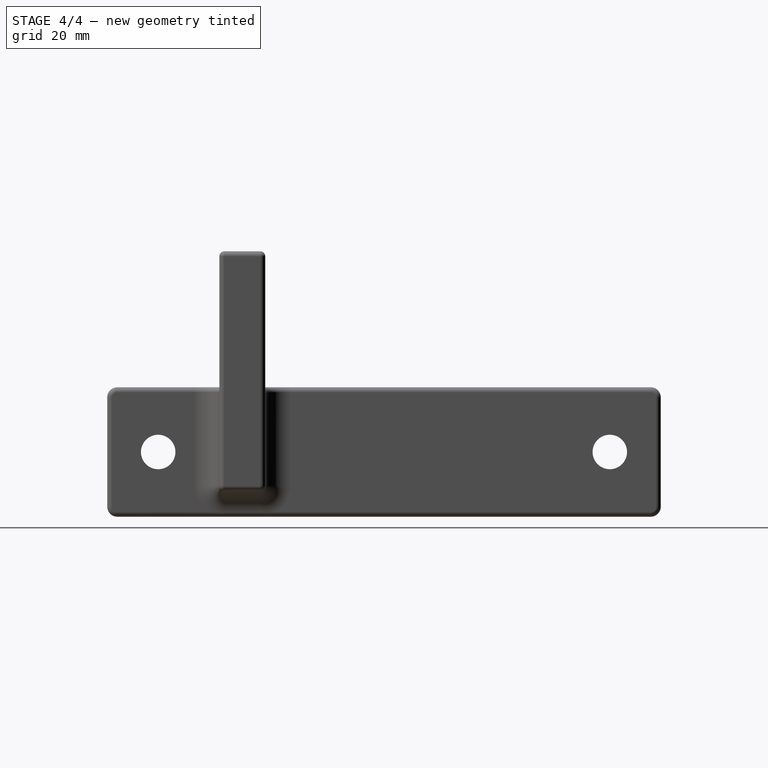
[diagram: stage 4 of 4 — right view after this stage's code; geometry added in this stage tinted green]
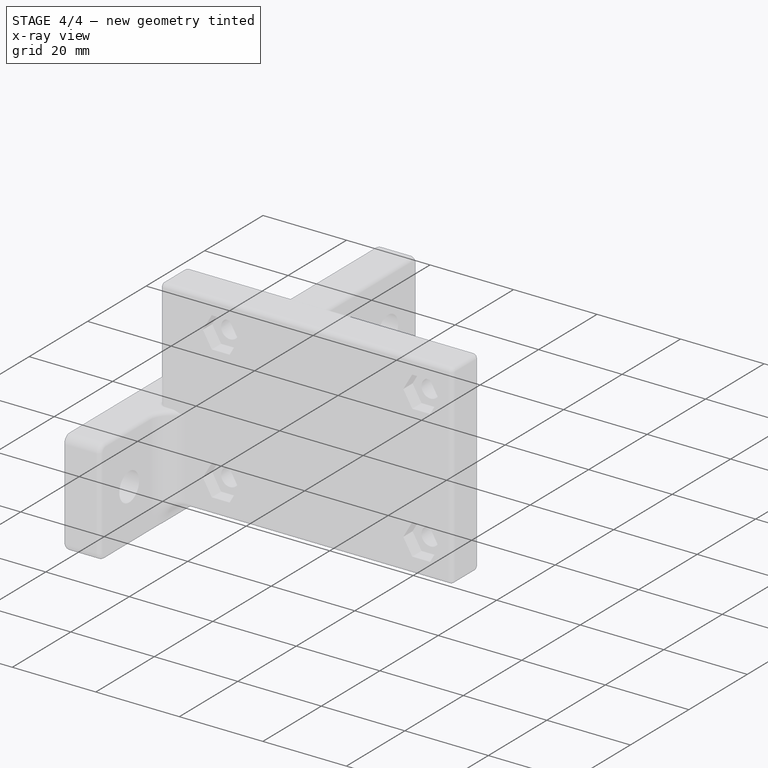
[diagram: stage 4 of 4 — x-ray composite at the iso view; earlier geometry ghosted, this stage's added geometry solid]
FEATURE [PartDesign::Fillet] Fillet003  label="ServoPlateTipFillet"
  Base = -> Fillet002 [Face19]
  BaseFeature = -> Fillet002
  Placement = pos=(0,0,0) rot=(0.57735,0.57735,0.57735;2.0944rad)
  Radius = 1
  SupportTransform = false
  UseAllEdges = false
FEATURE [PartDesign::Fillet] Fillet004  label="MountPlateBackFillet"
  Base = -> Fillet003 [Edge50]
  BaseFeature = -> Fillet003
  Placement = pos=(0,0,0) rot=(0.57735,0.57735,0.57735;2.0944rad)
  Radius = 1
  SupportTransform = false
  UseAllEdges = false
FEATURE [PartDesign::Body] Body
  Group = -> [Sketch,Pad,DatumPlane,Sketch001,Pocket,Sketch002,Pad001,DatumPlane001,DatumPlane002,Sketch003,Pocket001,Sketch004,Pocket002,Fillet,Fillet001,Fillet002,Fillet003,Fillet004]
  Origin = -> Origin
  Tip = -> Fillet004
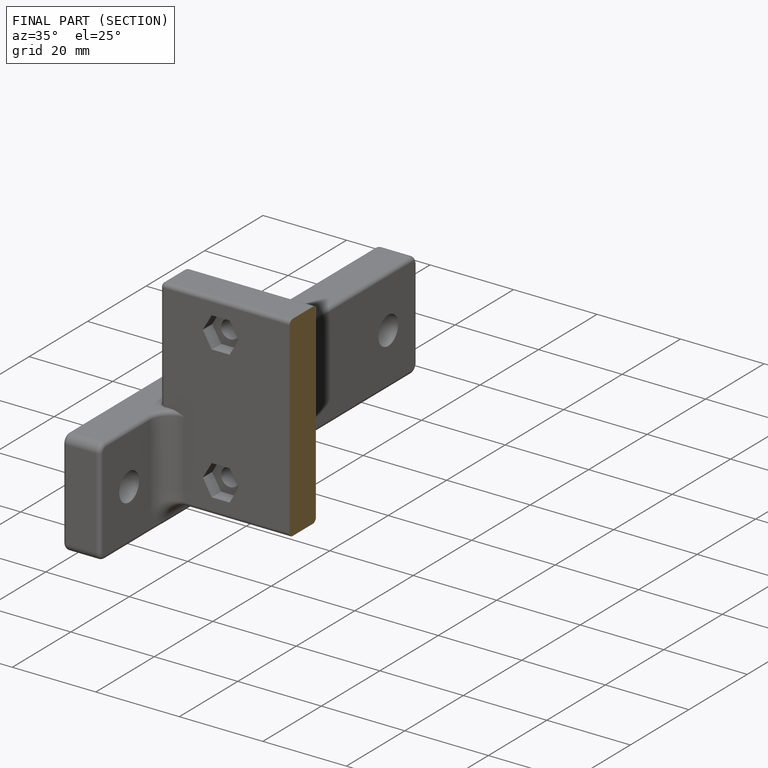
[diagram: finished part — half-section view (interior)]
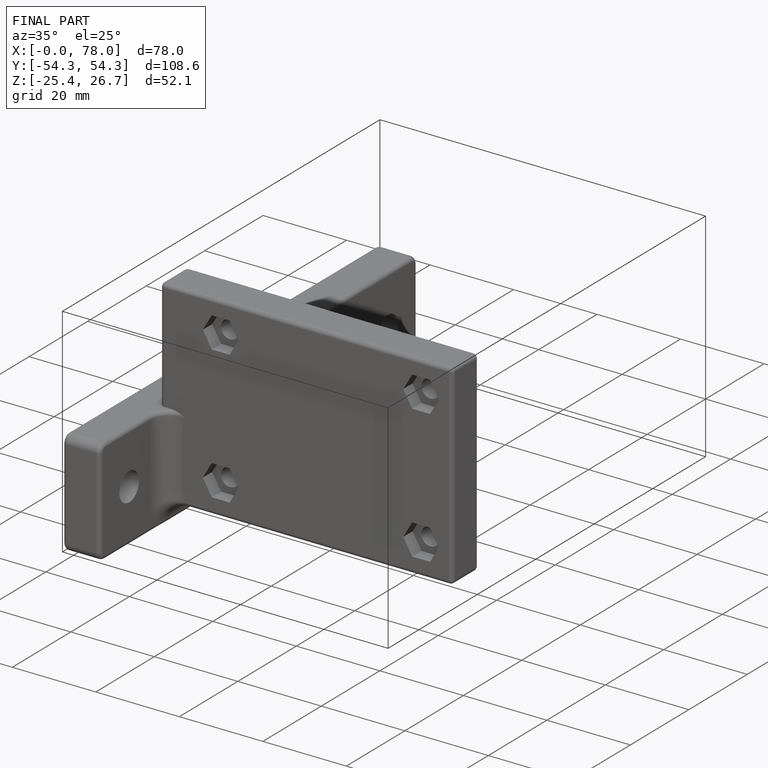
[diagram: finished part — iso view with bounding-box wireframe]
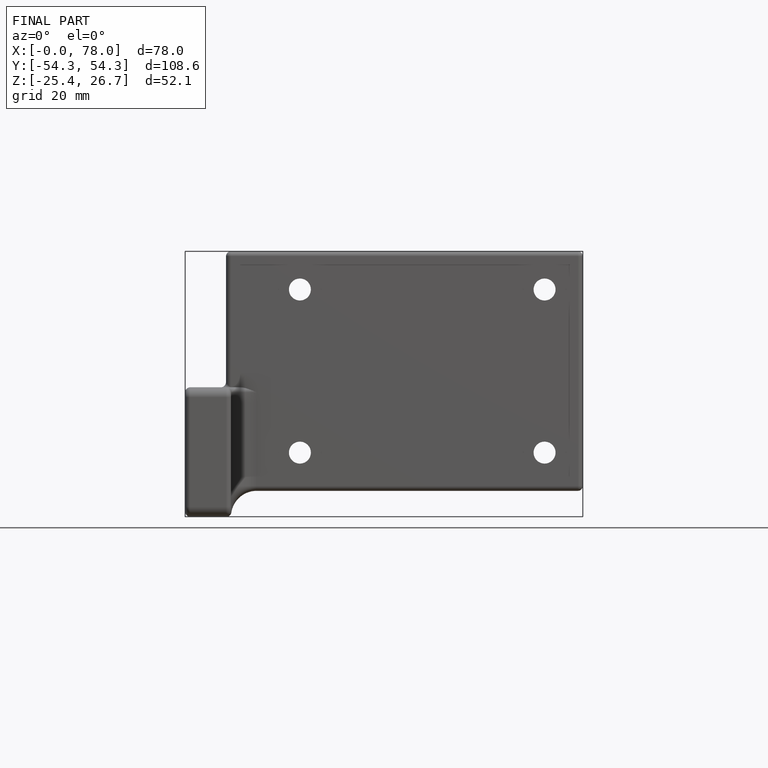
[diagram: finished part — front view with bounding-box wireframe]
